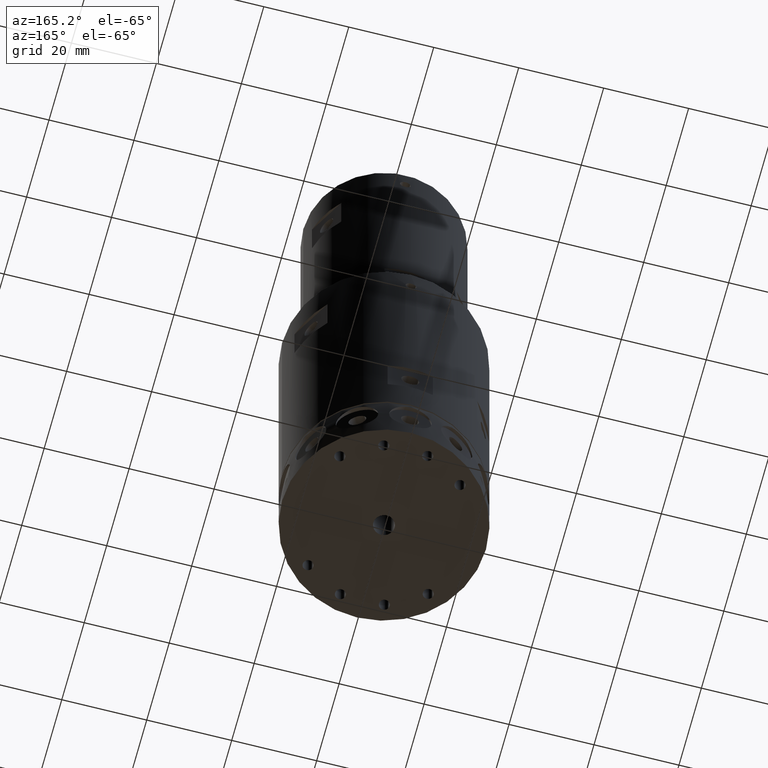
[diagram: clean part render]
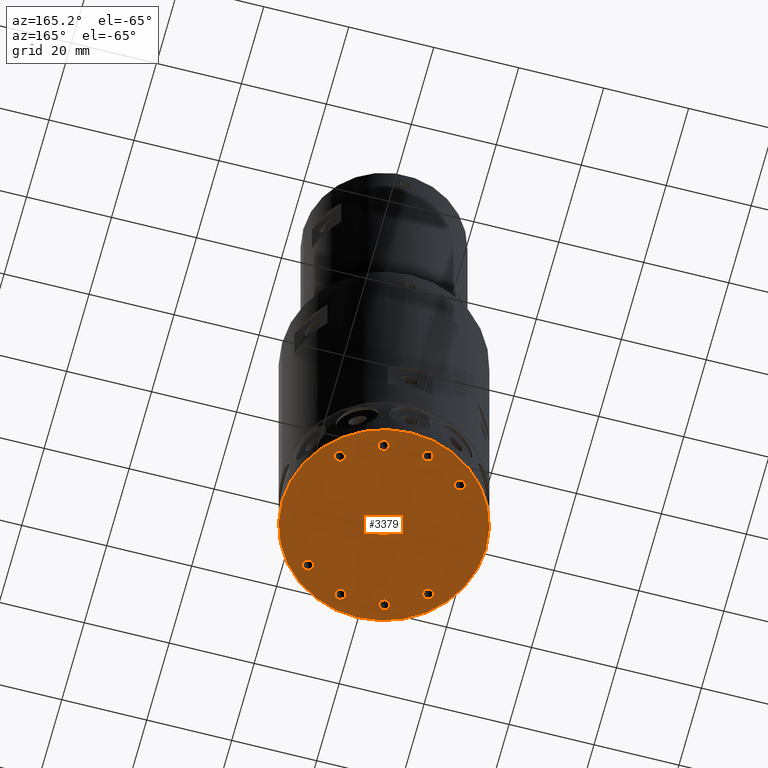
[diagram: same view with one face highlighted and labeled with its STEP entity id]
A machine part, auxiliary view. The second image highlights one B-rep face of the part: STEP entity #3379.
In plain terms, the highlighted planar face has unit normal (0, 0, 1).
Its self-contained STEP definition (entity closure, byte-faithful):
#21 = CARTESIAN_POINT ( 'NONE',  ( -14.14213562373046400, -14.14213562373045500, -1.402220585023716900E-015 ) ) ;
#44 = CIRCLE ( 'NONE', #1759, 2.500000000000000000 ) ;
#126 = CIRCLE ( 'NONE', #230, 1.249999999999988900 ) ;
#149 = CARTESIAN_POINT ( 'NONE',  ( 0.0000000000000000000, 0.0000000000000000000, 0.0000000000000000000 ) ) ;
#150 = AXIS2_PLACEMENT_3D ( 'NONE', #8629, #3937, #9412 ) ;
#187 = CIRCLE ( 'NONE', #9466, 1.249999999999988900 ) ;
#230 = AXIS2_PLACEMENT_3D ( 'NONE', #3295, #8784, #4102 ) ;
#280 = EDGE_LOOP ( 'NONE', ( #1425, #1208 ) ) ;
#395 = DIRECTION ( 'NONE',  ( -1.000000000000000000, 0.0000000000000000000, 0.0000000000000000000 ) ) ;
#397 = FACE_BOUND ( 'NONE', #5614, .T. ) ;
#415 = CARTESIAN_POINT ( 'NONE',  ( -6.426380902050225600, 19.31851652578070100, -1.402220585023716900E-015 ) ) ;
#442 = ORIENTED_EDGE ( 'NONE', *, *, #1637, .F. ) ;
#502 = CIRCLE ( 'NONE', #10076, 24.00000000000000400 ) ;
#531 = CARTESIAN_POINT ( 'NONE',  ( -12.89213562373047700, -14.14213562373045500, -1.402220585023716900E-015 ) ) ;
#571 = DIRECTION ( 'NONE',  ( -0.0000000000000000000, -0.0000000000000000000, -1.000000000000000000 ) ) ;
#589 = CARTESIAN_POINT ( 'NONE',  ( 0.0000000000000000000, 0.0000000000000000000, 0.0000000000000000000 ) ) ;
#606 = CARTESIAN_POINT ( 'NONE',  ( 3.926380902050273100, 19.31851652578070500, -1.402220585023716900E-015 ) ) ;
#638 = FACE_BOUND ( 'NONE', #280, .T. ) ;
#664 = VERTEX_POINT ( 'NONE', #415 ) ;
#670 = AXIS2_PLACEMENT_3D ( 'NONE', #5496, #816, #6292 ) ;
#705 = ORIENTED_EDGE ( 'NONE', *, *, #931, .F. ) ;
#745 = VERTEX_POINT ( 'NONE', #8942 ) ;
#754 = EDGE_CURVE ( 'NONE', #6061, #4541, #7149, .T. ) ;
#796 = DIRECTION ( 'NONE',  ( -1.000000000000000000, 0.0000000000000000000, 0.0000000000000000000 ) ) ;
#816 = DIRECTION ( 'NONE',  ( -0.0000000000000000000, -0.0000000000000000000, -1.000000000000000000 ) ) ;
#909 = AXIS2_PLACEMENT_3D ( 'NONE', #6917, #2226, #7708 ) ;
#910 = CARTESIAN_POINT ( 'NONE',  ( -12.89213562373047300, 14.14213562373046400, -1.402220585023716900E-015 ) ) ;
#931 = EDGE_CURVE ( 'NONE', #8141, #6433, #502, .T. ) ;
#932 = EDGE_CURVE ( 'NONE', #3623, #9571, #2569, .T. ) ;
#934 = DIRECTION ( 'NONE',  ( 1.000000000000000000, 0.0000000000000000000, 0.0000000000000000000 ) ) ;
#941 = EDGE_LOOP ( 'NONE', ( #6533, #6933 ) ) ;
#1040 = ORIENTED_EDGE ( 'NONE', *, *, #6066, .F. ) ;
#1097 = CARTESIAN_POINT ( 'NONE',  ( 0.0000000000000000000, 0.0000000000000000000, 0.0000000000000000000 ) ) ;
#1208 = ORIENTED_EDGE ( 'NONE', *, *, #754, .F. ) ;
#1212 = EDGE_CURVE ( 'NONE', #664, #8903, #126, .T. ) ;
#1254 = ORIENTED_EDGE ( 'NONE', *, *, #5531, .F. ) ;
#1276 = EDGE_LOOP ( 'NONE', ( #1869, #1254 ) ) ;
#1280 = DIRECTION ( 'NONE',  ( -0.0000000000000000000, -0.0000000000000000000, -1.000000000000000000 ) ) ;
#1340 = EDGE_CURVE ( 'NONE', #4541, #6061, #3063, .T. ) ;
#1379 = DIRECTION ( 'NONE',  ( -1.000000000000000000, 0.0000000000000000000, 0.0000000000000000000 ) ) ;
#1425 = ORIENTED_EDGE ( 'NONE', *, *, #1340, .F. ) ;
#1517 = AXIS2_PLACEMENT_3D ( 'NONE', #589, #6074, #1379 ) ;
#1594 = VERTEX_POINT ( 'NONE', #8748 ) ;
#1637 = EDGE_CURVE ( 'NONE', #4489, #3859, #2672, .T. ) ;
#1699 = DIRECTION ( 'NONE',  ( -0.0000000000000000000, -0.0000000000000000000, -1.000000000000000000 ) ) ;
#1759 = AXIS2_PLACEMENT_3D ( 'NONE', #3473, #8971, #4269 ) ;
#1869 = ORIENTED_EDGE ( 'NONE', *, *, #7640, .F. ) ;
#1905 = DIRECTION ( 'NONE',  ( -0.0000000000000000000, -0.0000000000000000000, -1.000000000000000000 ) ) ;
#2108 = AXIS2_PLACEMENT_3D ( 'NONE', #3285, #8771, #4091 ) ;
#2149 = CARTESIAN_POINT ( 'NONE',  ( -24.00000000000000400, 0.0000000000000000000, 0.0000000000000000000 ) ) ;
#2169 = CARTESIAN_POINT ( 'NONE',  ( 14.14213562373048400, 14.14213562373045500, -1.402220585023716900E-015 ) ) ;
#2226 = DIRECTION ( 'NONE',  ( -0.0000000000000000000, -0.0000000000000000000, -1.000000000000000000 ) ) ;
#2463 = FACE_BOUND ( 'NONE', #7785, .T. ) ;
#2557 = ORIENTED_EDGE ( 'NONE', *, *, #9856, .F. ) ;
#2569 = CIRCLE ( 'NONE', #7970, 1.249999999999988900 ) ;
#2622 = AXIS2_PLACEMENT_3D ( 'NONE', #149, #5618, #934 ) ;
#2672 = CIRCLE ( 'NONE', #6995, 1.249999999999988900 ) ;
#2709 = FACE_BOUND ( 'NONE', #3178, .T. ) ;
#2710 = VERTEX_POINT ( 'NONE', #8507 ) ;
#2760 = CARTESIAN_POINT ( 'NONE',  ( -14.14213562373046100, 14.14213562373046400, -1.402220585023716900E-015 ) ) ;
#2833 = CARTESIAN_POINT ( 'NONE',  ( 12.89213562373046600, -14.14213562373047300, -1.402220585023716900E-015 ) ) ;
#2848 = CARTESIAN_POINT ( 'NONE',  ( -5.176380902050245100, -19.31851652578069800, -1.402220585023716900E-015 ) ) ;
#2872 = AXIS2_PLACEMENT_3D ( 'NONE', #6398, #1699, #7189 ) ;
#2955 = DIRECTION ( 'NONE',  ( -1.000000000000000000, 0.0000000000000000000, 0.0000000000000000000 ) ) ;
#2957 = AXIS2_PLACEMENT_3D ( 'NONE', #2760, #8266, #3561 ) ;
#3063 = CIRCLE ( 'NONE', #6007, 1.249999999999988900 ) ;
#3090 = EDGE_CURVE ( 'NONE', #5358, #9199, #3333, .T. ) ;
#3178 = EDGE_LOOP ( 'NONE', ( #9329, #9602 ) ) ;
#3245 = CARTESIAN_POINT ( 'NONE',  ( 24.00000000000000400, 2.939152317953647900E-015, 0.0000000000000000000 ) ) ;
#3285 = CARTESIAN_POINT ( 'NONE',  ( -14.14213562373046400, -14.14213562373045500, -1.402220585023716900E-015 ) ) ;
#3295 = CARTESIAN_POINT ( 'NONE',  ( -5.176380902050237200, 19.31851652578070100, -1.402220585023716900E-015 ) ) ;
#3333 = CIRCLE ( 'NONE', #909, 1.249999999999988900 ) ;
#3379 = ADVANCED_FACE ( 'NONE', ( #2709, #8726, #638, #6629, #4550, #2463, #397, #8497, #6393, #4315 ), #9684, .F. ) ;
#3450 = CIRCLE ( 'NONE', #7868, 1.249999999999988900 ) ;
#3454 = DIRECTION ( 'NONE',  ( 0.0000000000000000000, 0.0000000000000000000, 1.000000000000000000 ) ) ;
#3473 = CARTESIAN_POINT ( 'NONE',  ( 0.0000000000000000000, 0.0000000000000000000, 0.0000000000000000000 ) ) ;
#3556 = CARTESIAN_POINT ( 'NONE',  ( -3.926380902050255800, -19.31851652578069800, -1.402220585023716900E-015 ) ) ;
#3561 = DIRECTION ( 'NONE',  ( -1.000000000000000000, 0.0000000000000000000, 0.0000000000000000000 ) ) ;
#3623 = VERTEX_POINT ( 'NONE', #606 ) ;
#3642 = DIRECTION ( 'NONE',  ( -1.000000000000000000, 0.0000000000000000000, 0.0000000000000000000 ) ) ;
#3690 = DIRECTION ( 'NONE',  ( 0.0000000000000000000, 0.0000000000000000000, 1.000000000000000000 ) ) ;
#3716 = EDGE_CURVE ( 'NONE', #4681, #2710, #3450, .T. ) ;
#3859 = VERTEX_POINT ( 'NONE', #10020 ) ;
#3937 = DIRECTION ( 'NONE',  ( -0.0000000000000000000, -0.0000000000000000000, -1.000000000000000000 ) ) ;
#3992 = CIRCLE ( 'NONE', #7027, 1.249999999999988900 ) ;
#4091 = DIRECTION ( 'NONE',  ( -1.000000000000000000, 0.0000000000000000000, 0.0000000000000000000 ) ) ;
#4102 = DIRECTION ( 'NONE',  ( -1.000000000000000000, 0.0000000000000000000, 0.0000000000000000000 ) ) ;
#4131 = CARTESIAN_POINT ( 'NONE',  ( 5.176380902050226500, -19.31851652578070500, -1.402220585023716900E-015 ) ) ;
#4189 = CIRCLE ( 'NONE', #1517, 2.500000000000000000 ) ;
#4256 = DIRECTION ( 'NONE',  ( -0.0000000000000000000, -0.0000000000000000000, -1.000000000000000000 ) ) ;
#4269 = DIRECTION ( 'NONE',  ( -1.000000000000000000, 0.0000000000000000000, 0.0000000000000000000 ) ) ;
#4315 = FACE_OUTER_BOUND ( 'NONE', #8068, .T. ) ;
#4358 = ORIENTED_EDGE ( 'NONE', *, *, #3716, .F. ) ;
#4379 = AXIS2_PLACEMENT_3D ( 'NONE', #1097, #3454, #8946 ) ;
#4475 = EDGE_CURVE ( 'NONE', #9571, #3623, #4924, .T. ) ;
#4489 = VERTEX_POINT ( 'NONE', #5613 ) ;
#4490 = CARTESIAN_POINT ( 'NONE',  ( -2.500000000000000000, 0.0000000000000000000, 0.0000000000000000000 ) ) ;
#4541 = VERTEX_POINT ( 'NONE', #4908 ) ;
#4550 = FACE_BOUND ( 'NONE', #5811, .T. ) ;
#4561 = ORIENTED_EDGE ( 'NONE', *, *, #7895, .F. ) ;
#4613 = CIRCLE ( 'NONE', #9480, 1.249999999999988900 ) ;
#4681 = VERTEX_POINT ( 'NONE', #3556 ) ;
#4844 = AXIS2_PLACEMENT_3D ( 'NONE', #9771, #5058, #395 ) ;
#4887 = DIRECTION ( 'NONE',  ( -1.000000000000000000, 0.0000000000000000000, 0.0000000000000000000 ) ) ;
#4908 = CARTESIAN_POINT ( 'NONE',  ( 12.89213562373049400, 14.14213562373045500, -1.402220585023716900E-015 ) ) ;
#4924 = CIRCLE ( 'NONE', #2872, 1.249999999999988900 ) ;
#5053 = ORIENTED_EDGE ( 'NONE', *, *, #5512, .F. ) ;
#5058 = DIRECTION ( 'NONE',  ( -0.0000000000000000000, -0.0000000000000000000, -1.000000000000000000 ) ) ;
#5132 = EDGE_CURVE ( 'NONE', #1594, #5230, #44, .T. ) ;
#5147 = CIRCLE ( 'NONE', #2622, 24.00000000000000400 ) ;
#5230 = VERTEX_POINT ( 'NONE', #4490 ) ;
#5242 = CARTESIAN_POINT ( 'NONE',  ( 5.176380902050262000, 19.31851652578070500, -1.402220585023716900E-015 ) ) ;
#5358 = VERTEX_POINT ( 'NONE', #7753 ) ;
#5439 = CIRCLE ( 'NONE', #2957, 1.249999999999988900 ) ;
#5475 = DIRECTION ( 'NONE',  ( -0.0000000000000000000, -0.0000000000000000000, -1.000000000000000000 ) ) ;
#5496 = CARTESIAN_POINT ( 'NONE',  ( 5.176380902050226500, -19.31851652578070500, -1.402220585023716900E-015 ) ) ;
#5512 = EDGE_CURVE ( 'NONE', #6433, #8141, #5147, .T. ) ;
#5531 = EDGE_CURVE ( 'NONE', #9905, #745, #6153, .T. ) ;
#5561 = ORIENTED_EDGE ( 'NONE', *, *, #7973, .F. ) ;
#5613 = CARTESIAN_POINT ( 'NONE',  ( 3.926380902050237600, -19.31851652578070500, -1.402220585023716900E-015 ) ) ;
#5614 = EDGE_LOOP ( 'NONE', ( #4561, #8841 ) ) ;
#5618 = DIRECTION ( 'NONE',  ( 0.0000000000000000000, 0.0000000000000000000, 1.000000000000000000 ) ) ;
#5639 = CARTESIAN_POINT ( 'NONE',  ( 6.426380902050251400, 19.31851652578070500, -1.402220585023716900E-015 ) ) ;
#5746 = AXIS2_PLACEMENT_3D ( 'NONE', #6589, #1905, #7383 ) ;
#5811 = EDGE_LOOP ( 'NONE', ( #442, #7439 ) ) ;
#5881 = VERTEX_POINT ( 'NONE', #910 ) ;
#5966 = CARTESIAN_POINT ( 'NONE',  ( -5.176380902050245100, -19.31851652578069800, -1.402220585023716900E-015 ) ) ;
#6007 = AXIS2_PLACEMENT_3D ( 'NONE', #2169, #7655, #2955 ) ;
#6049 = DIRECTION ( 'NONE',  ( -1.000000000000000000, 0.0000000000000000000, 0.0000000000000000000 ) ) ;
#6061 = VERTEX_POINT ( 'NONE', #8211 ) ;
#6066 = EDGE_CURVE ( 'NONE', #8903, #664, #7242, .T. ) ;
#6074 = DIRECTION ( 'NONE',  ( 0.0000000000000000000, 0.0000000000000000000, -1.000000000000000000 ) ) ;
#6153 = CIRCLE ( 'NONE', #2108, 1.249999999999988900 ) ;
#6202 = EDGE_CURVE ( 'NONE', #5230, #1594, #4189, .T. ) ;
#6292 = DIRECTION ( 'NONE',  ( -1.000000000000000000, 0.0000000000000000000, 0.0000000000000000000 ) ) ;
#6393 = FACE_BOUND ( 'NONE', #941, .T. ) ;
#6398 = CARTESIAN_POINT ( 'NONE',  ( 5.176380902050262000, 19.31851652578070500, -1.402220585023716900E-015 ) ) ;
#6433 = VERTEX_POINT ( 'NONE', #3245 ) ;
#6533 = ORIENTED_EDGE ( 'NONE', *, *, #6202, .F. ) ;
#6589 = CARTESIAN_POINT ( 'NONE',  ( 14.14213562373048400, 14.14213562373045500, -1.402220585023716900E-015 ) ) ;
#6629 = FACE_BOUND ( 'NONE', #9848, .T. ) ;
#6748 = DIRECTION ( 'NONE',  ( -1.000000000000000000, 0.0000000000000000000, 0.0000000000000000000 ) ) ;
#6917 = CARTESIAN_POINT ( 'NONE',  ( 14.14213562373045500, -14.14213562373047300, -1.402220585023716900E-015 ) ) ;
#6933 = ORIENTED_EDGE ( 'NONE', *, *, #5132, .F. ) ;
#6995 = AXIS2_PLACEMENT_3D ( 'NONE', #4131, #9601, #4887 ) ;
#7027 = AXIS2_PLACEMENT_3D ( 'NONE', #21, #5475, #796 ) ;
#7149 = CIRCLE ( 'NONE', #5746, 1.249999999999988900 ) ;
#7189 = DIRECTION ( 'NONE',  ( -1.000000000000000000, 0.0000000000000000000, 0.0000000000000000000 ) ) ;
#7242 = CIRCLE ( 'NONE', #4844, 1.249999999999988900 ) ;
#7383 = DIRECTION ( 'NONE',  ( -1.000000000000000000, 0.0000000000000000000, 0.0000000000000000000 ) ) ;
#7439 = ORIENTED_EDGE ( 'NONE', *, *, #8240, .F. ) ;
#7640 = EDGE_CURVE ( 'NONE', #745, #9905, #3992, .T. ) ;
#7655 = DIRECTION ( 'NONE',  ( -0.0000000000000000000, -0.0000000000000000000, -1.000000000000000000 ) ) ;
#7708 = DIRECTION ( 'NONE',  ( -1.000000000000000000, 0.0000000000000000000, 0.0000000000000000000 ) ) ;
#7753 = CARTESIAN_POINT ( 'NONE',  ( 15.39213562373044300, -14.14213562373047300, -1.402220585023716900E-015 ) ) ;
#7785 = EDGE_LOOP ( 'NONE', ( #2557, #4358 ) ) ;
#7868 = AXIS2_PLACEMENT_3D ( 'NONE', #2848, #8354, #3642 ) ;
#7890 = CARTESIAN_POINT ( 'NONE',  ( -3.926380902050247800, 19.31851652578070100, -1.402220585023716900E-015 ) ) ;
#7895 = EDGE_CURVE ( 'NONE', #9199, #5358, #187, .T. ) ;
#7968 = CIRCLE ( 'NONE', #150, 1.249999999999988900 ) ;
#7970 = AXIS2_PLACEMENT_3D ( 'NONE', #5242, #571, #6049 ) ;
#7973 = EDGE_CURVE ( 'NONE', #9166, #5881, #5439, .T. ) ;
#8068 = EDGE_LOOP ( 'NONE', ( #705, #5053 ) ) ;
#8141 = VERTEX_POINT ( 'NONE', #2149 ) ;
#8211 = CARTESIAN_POINT ( 'NONE',  ( 15.39213562373047300, 14.14213562373045500, -1.402220585023716900E-015 ) ) ;
#8236 = EDGE_CURVE ( 'NONE', #5881, #9166, #7968, .T. ) ;
#8240 = EDGE_CURVE ( 'NONE', #3859, #4489, #10056, .T. ) ;
#8266 = DIRECTION ( 'NONE',  ( -0.0000000000000000000, -0.0000000000000000000, -1.000000000000000000 ) ) ;
#8354 = DIRECTION ( 'NONE',  ( -0.0000000000000000000, -0.0000000000000000000, -1.000000000000000000 ) ) ;
#8394 = CARTESIAN_POINT ( 'NONE',  ( 0.0000000000000000000, 0.0000000000000000000, 0.0000000000000000000 ) ) ;
#8497 = FACE_BOUND ( 'NONE', #1276, .T. ) ;
#8507 = CARTESIAN_POINT ( 'NONE',  ( -6.426380902050233600, -19.31851652578069800, -1.402220585023716900E-015 ) ) ;
#8629 = CARTESIAN_POINT ( 'NONE',  ( -14.14213562373046100, 14.14213562373046400, -1.402220585023716900E-015 ) ) ;
#8642 = EDGE_LOOP ( 'NONE', ( #10084, #1040 ) ) ;
#8726 = FACE_BOUND ( 'NONE', #8642, .T. ) ;
#8748 = CARTESIAN_POINT ( 'NONE',  ( 2.500000000000000000, 3.061616997868383100E-016, 0.0000000000000000000 ) ) ;
#8771 = DIRECTION ( 'NONE',  ( -0.0000000000000000000, -0.0000000000000000000, -1.000000000000000000 ) ) ;
#8784 = DIRECTION ( 'NONE',  ( -0.0000000000000000000, -0.0000000000000000000, -1.000000000000000000 ) ) ;
#8841 = ORIENTED_EDGE ( 'NONE', *, *, #3090, .F. ) ;
#8903 = VERTEX_POINT ( 'NONE', #7890 ) ;
#8942 = CARTESIAN_POINT ( 'NONE',  ( -15.39213562373045400, -14.14213562373045500, -1.402220585023716900E-015 ) ) ;
#8946 = DIRECTION ( 'NONE',  ( 1.000000000000000000, 0.0000000000000000000, -0.0000000000000000000 ) ) ;
#8954 = CARTESIAN_POINT ( 'NONE',  ( 14.14213562373045500, -14.14213562373047300, -1.402220585023716900E-015 ) ) ;
#8971 = DIRECTION ( 'NONE',  ( 0.0000000000000000000, 0.0000000000000000000, -1.000000000000000000 ) ) ;
#9164 = ORIENTED_EDGE ( 'NONE', *, *, #8236, .F. ) ;
#9165 = DIRECTION ( 'NONE',  ( 1.000000000000000000, 0.0000000000000000000, 0.0000000000000000000 ) ) ;
#9166 = VERTEX_POINT ( 'NONE', #9832 ) ;
#9199 = VERTEX_POINT ( 'NONE', #2833 ) ;
#9329 = ORIENTED_EDGE ( 'NONE', *, *, #932, .F. ) ;
#9412 = DIRECTION ( 'NONE',  ( -1.000000000000000000, 0.0000000000000000000, 0.0000000000000000000 ) ) ;
#9466 = AXIS2_PLACEMENT_3D ( 'NONE', #8954, #4256, #9730 ) ;
#9480 = AXIS2_PLACEMENT_3D ( 'NONE', #5966, #1280, #6748 ) ;
#9571 = VERTEX_POINT ( 'NONE', #5639 ) ;
#9601 = DIRECTION ( 'NONE',  ( -0.0000000000000000000, -0.0000000000000000000, -1.000000000000000000 ) ) ;
#9602 = ORIENTED_EDGE ( 'NONE', *, *, #4475, .F. ) ;
#9684 = PLANE ( 'NONE',  #4379 ) ;
#9730 = DIRECTION ( 'NONE',  ( -1.000000000000000000, 0.0000000000000000000, 0.0000000000000000000 ) ) ;
#9771 = CARTESIAN_POINT ( 'NONE',  ( -5.176380902050237200, 19.31851652578070100, -1.402220585023716900E-015 ) ) ;
#9832 = CARTESIAN_POINT ( 'NONE',  ( -15.39213562373045000, 14.14213562373046400, -1.402220585023716900E-015 ) ) ;
#9848 = EDGE_LOOP ( 'NONE', ( #5561, #9164 ) ) ;
#9856 = EDGE_CURVE ( 'NONE', #2710, #4681, #4613, .T. ) ;
#9905 = VERTEX_POINT ( 'NONE', #531 ) ;
#10020 = CARTESIAN_POINT ( 'NONE',  ( 6.426380902050215800, -19.31851652578070500, -1.402220585023716900E-015 ) ) ;
#10056 = CIRCLE ( 'NONE', #670, 1.249999999999988900 ) ;
#10076 = AXIS2_PLACEMENT_3D ( 'NONE', #8394, #3690, #9165 ) ;
#10084 = ORIENTED_EDGE ( 'NONE', *, *, #1212, .F. ) ;